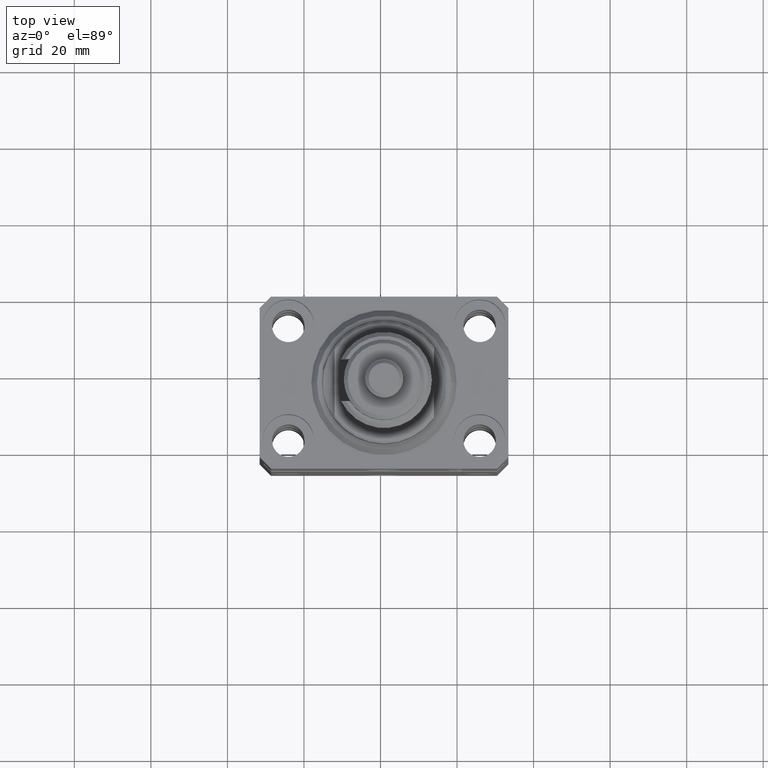
[diagram: clean part render]
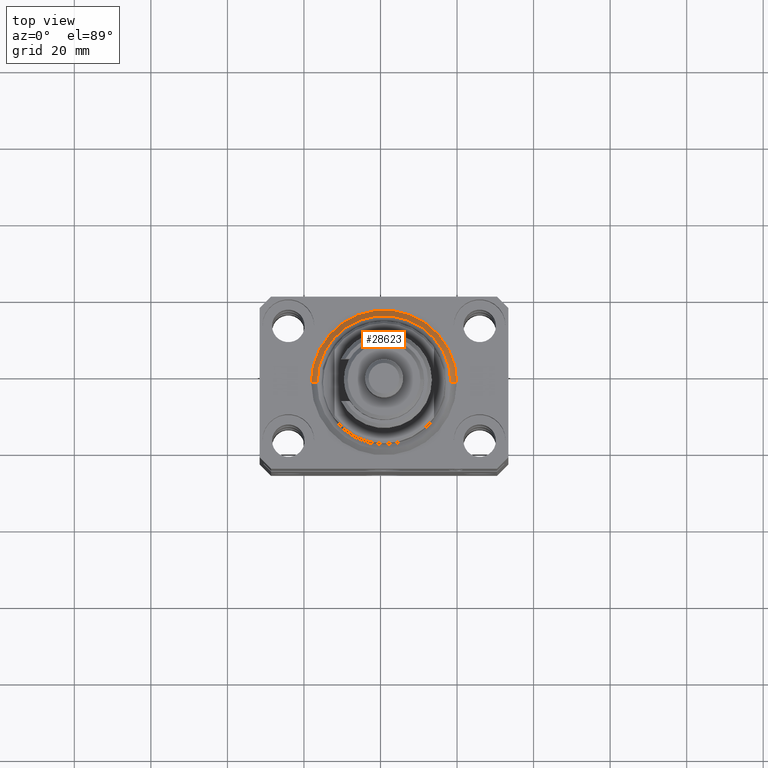
[diagram: same view with one face highlighted and labeled with its STEP entity id]
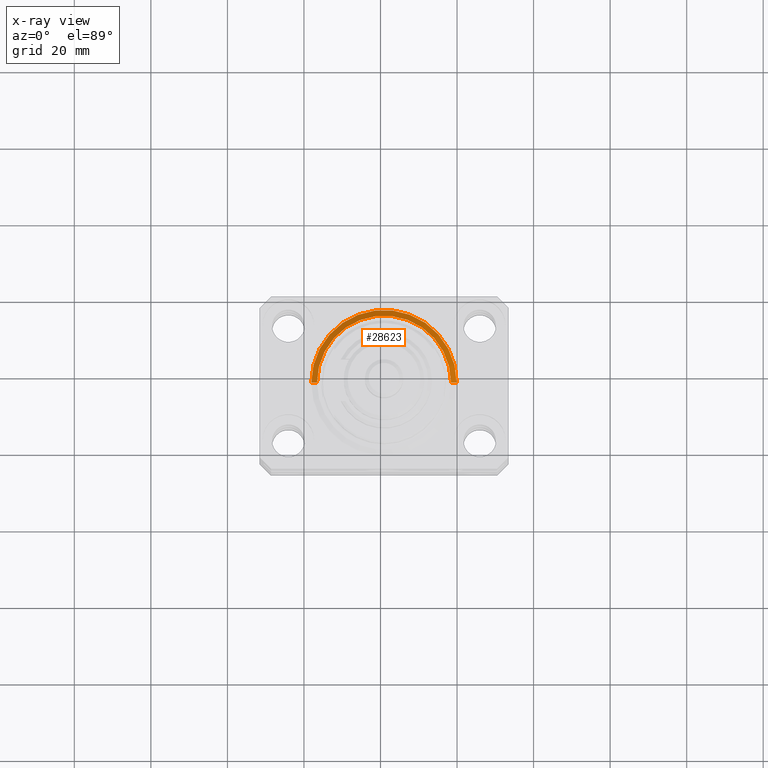
[diagram: x-ray of the same camera — body ghosted, the highlighted face saturated]
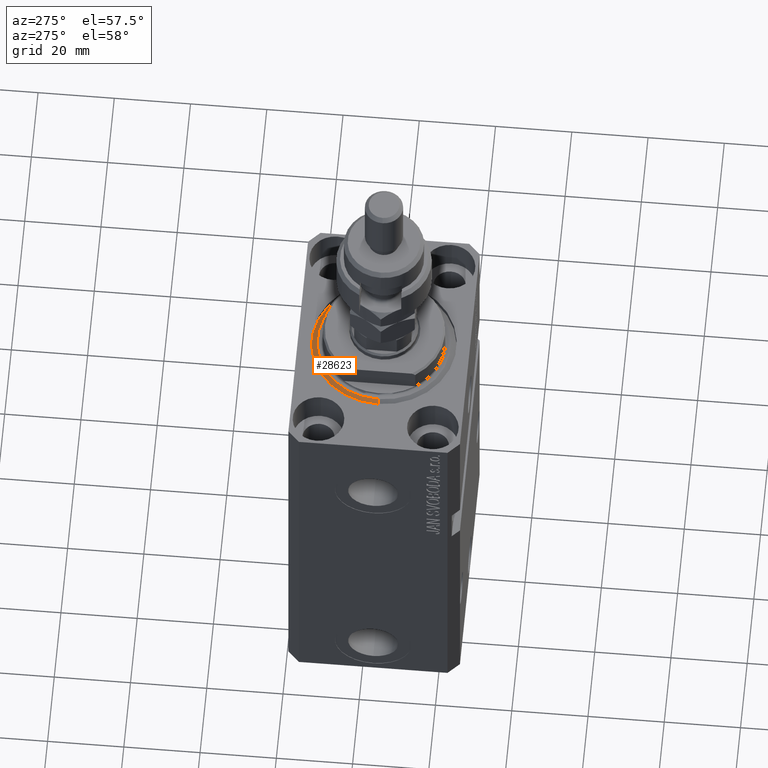
[diagram: same view with one face highlighted and labeled with its STEP entity id]
A machine part, top view. The second image highlights one B-rep face of the part: STEP entity #28623.
The next image is the same camera in x-ray: the body ghosted, the highlighted face saturated — about 0% of this face is hidden behind the body in this view.
A second angle (auxiliary view) of the same face is appended — the face is thin or edge-on in the first view.
In plain terms, the highlighted conical surface has half-angle 45 deg.
Its self-contained STEP definition (entity closure, byte-faithful):
#160 = CIRCLE ( 'NONE', #38380, 19.00000000000000000 ) ;
#1568 = VERTEX_POINT ( 'NONE', #31147 ) ;
#4223 = CARTESIAN_POINT ( 'NONE',  ( 0.000000000000000000, 0.000000000000000000, 1.500000000000004885 ) ) ;
#5183 = DIRECTION ( 'NONE',  ( 1.000000000000000000, 0.000000000000000000, 0.000000000000000000 ) ) ;
#5830 = DIRECTION ( 'NONE',  ( -0.000000000000000000, -0.000000000000000000, -1.000000000000000000 ) ) ;
#7032 = ORIENTED_EDGE ( 'NONE', *, *, #46957, .T. ) ;
#8280 = ORIENTED_EDGE ( 'NONE', *, *, #42992, .F. ) ;
#8621 = DIRECTION ( 'NONE',  ( 1.000000000000000000, 0.000000000000000000, 0.000000000000000000 ) ) ;
#8627 = CIRCLE ( 'NONE', #35955, 17.49999999999999289 ) ;
#9480 = CARTESIAN_POINT ( 'NONE',  ( 0.000000000000000000, 0.000000000000000000, 0.000000000000000000 ) ) ;
#10083 = VECTOR ( 'NONE', #33942, 1000.000000000000000 ) ;
#17189 = VERTEX_POINT ( 'NONE', #23297 ) ;
#18519 = AXIS2_PLACEMENT_3D ( 'NONE', #4223, #31316, #5183 ) ;
#20236 = ORIENTED_EDGE ( 'NONE', *, *, #33578, .F. ) ;
#20718 = DIRECTION ( 'NONE',  ( 1.000000000000000000, 0.000000000000000000, 0.000000000000000000 ) ) ;
#22303 = FACE_OUTER_BOUND ( 'NONE', #29791, .T. ) ;
#23297 = CARTESIAN_POINT ( 'NONE',  ( -19.00000000000000000, 0.000000000000000000, 1.500000000000004885 ) ) ;
#26836 = LINE ( 'NONE', #33693, #10083 ) ;
#27199 = CARTESIAN_POINT ( 'NONE',  ( 0.000000000000000000, 0.000000000000000000, 1.500000000000004885 ) ) ;
#28623 = ADVANCED_FACE ( 'NONE', ( #22303 ), #31020, .T. ) ;
#28832 = CARTESIAN_POINT ( 'NONE',  ( 17.49999999999999289, 0.000000000000000000, 0.000000000000000000 ) ) ;
#29791 = EDGE_LOOP ( 'NONE', ( #37997, #7032, #8280, #20236 ) ) ;
#31020 = CONICAL_SURFACE ( 'NONE', #18519, 19.00000000000000000, 0.7853981633974492782 ) ;
#31147 = CARTESIAN_POINT ( 'NONE',  ( -17.49999999999999289, 2.234980408443919215E-15, 0.000000000000000000 ) ) ;
#31316 = DIRECTION ( 'NONE',  ( -0.000000000000000000, -0.000000000000000000, 1.000000000000000000 ) ) ;
#32572 = VERTEX_POINT ( 'NONE', #45724 ) ;
#33578 = EDGE_CURVE ( 'NONE', #46260, #32572, #26836, .T. ) ;
#33693 = CARTESIAN_POINT ( 'NONE',  ( 19.00000000000000000, 0.000000000000000000, 1.500000000000004885 ) ) ;
#33942 = DIRECTION ( 'NONE',  ( 0.7071067811865483499, 0.000000000000000000, 0.7071067811865467956 ) ) ;
#35955 = AXIS2_PLACEMENT_3D ( 'NONE', #9480, #5830, #20718 ) ;
#37739 = LINE ( 'NONE', #42113, #46323 ) ;
#37997 = ORIENTED_EDGE ( 'NONE', *, *, #39786, .F. ) ;
#38380 = AXIS2_PLACEMENT_3D ( 'NONE', #27199, #42095, #8621 ) ;
#39786 = EDGE_CURVE ( 'NONE', #1568, #46260, #8627, .T. ) ;
#41874 = DIRECTION ( 'NONE',  ( -0.7071067811865483499, 8.659560562354943952E-17, 0.7071067811865467956 ) ) ;
#42095 = DIRECTION ( 'NONE',  ( -0.000000000000000000, -0.000000000000000000, 1.000000000000000000 ) ) ;
#42113 = CARTESIAN_POINT ( 'NONE',  ( -19.00000000000000000, 2.326828918379970970E-15, 1.500000000000004885 ) ) ;
#42992 = EDGE_CURVE ( 'NONE', #32572, #17189, #160, .T. ) ;
#45724 = CARTESIAN_POINT ( 'NONE',  ( 19.00000000000000000, 2.326828918379970970E-15, 1.500000000000004885 ) ) ;
#46260 = VERTEX_POINT ( 'NONE', #28832 ) ;
#46323 = VECTOR ( 'NONE', #41874, 1000.000000000000000 ) ;
#46957 = EDGE_CURVE ( 'NONE', #1568, #17189, #37739, .T. ) ;